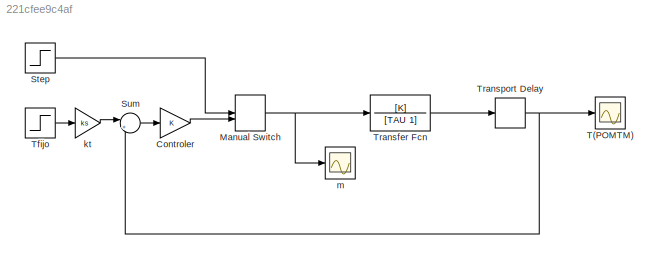
MODEL slx_221cfee9c4af
KIND model
BLOCK [Gain] Controler
  OutDataTypeStr = Inherit: Inherit via internal rule
  ParamDataTypeStr = Inherit: Inherit via internal rule
  SaturateOnIntegerOverflow = off
BLOCK [ManualSwitch] Manual Switch
BLOCK [Step] Step
  After = 2
  SampleTime = 0
  Time = ttotal/3
BLOCK [Sum] Sum
  IconShape = round
  InputSameDT = off
  Inputs = |+-
  OutDataTypeStr = Inherit: Inherit via internal rule
  Ports = [2, 1]
BLOCK [Scope] T(POMTM)
  DataFormat = StructureWithTime
  Floating = off
  NumInputPorts = 1
  Ports = [1]
  SampleTime = 0
  SaveName = Tm1
  SaveToWorkspace = on
  ShowLegends = off
  TimeRange = 60
  YMax = 700
  YMin = 0
BLOCK [Step] Tfijo
  After = 5
  SampleTime = 0
  Time = 0
BLOCK [TransferFcn] Transfer Fcn
  Denominator = [TAU 1]
  Numerator = [K]
BLOCK [TransportDelay] Transport Delay
  DelayTime = T0
  Ports = [1, 1]
BLOCK [Gain] kt
  Gain = ks
BLOCK [Scope] m
  DataFormat = StructureWithTime
  Floating = off
  NumInputPorts = 1
  Ports = [1]
  SampleTime = 0
  SaveName = m
  SaveToWorkspace = on
  ShowLegends = off
LINE Controler:1 -> Manual Switch:2
NET Manual Switch:1 -> Transfer Fcn:1, m:1
LINE Step:1 -> Manual Switch:1
LINE Sum:1 -> Controler:1
LINE Tfijo:1 -> kt:1
LINE Transfer Fcn:1 -> Transport Delay:1
NET Transport Delay:1 -> Sum:2, T(POMTM):1
LINE kt:1 -> Sum:1
note: NET lines group one-source signal fan-out (src -> all destinations, sorted); 1:1 wires keep LINE
